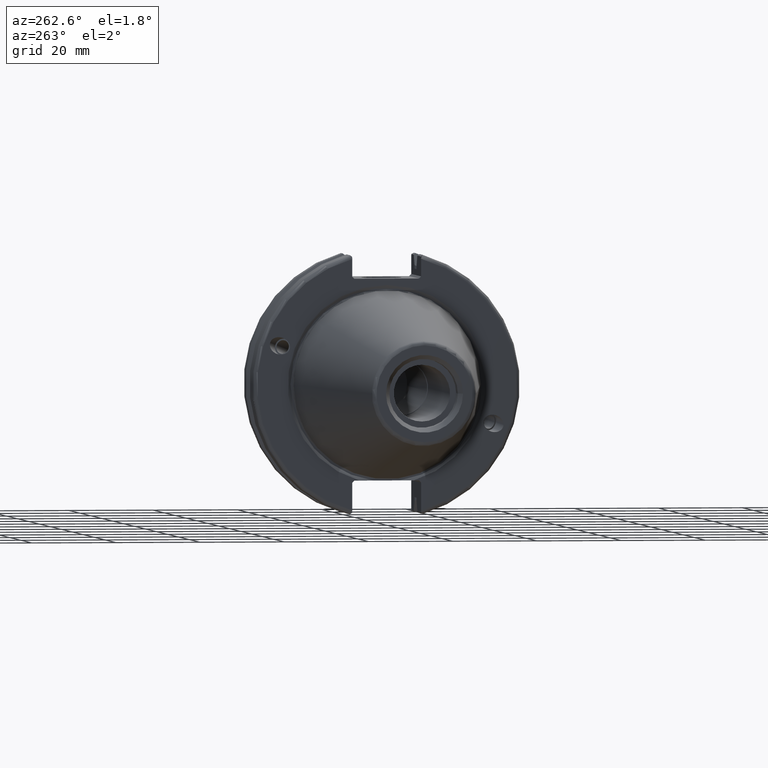
[diagram: clean part render]
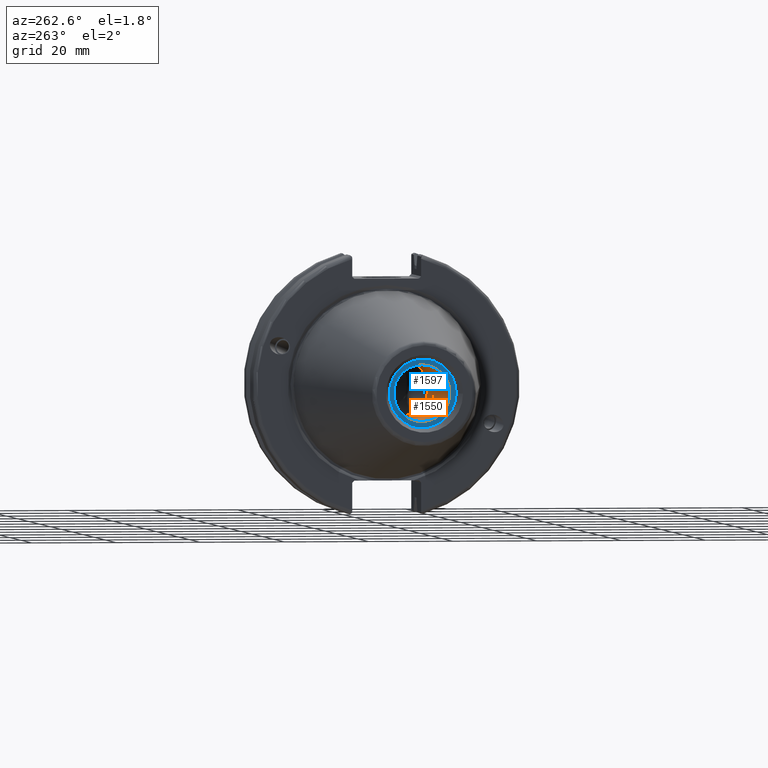
[diagram: same view with the hole feature highlighted: cylindrical wall and planar end face, labeled with their STEP entity ids]
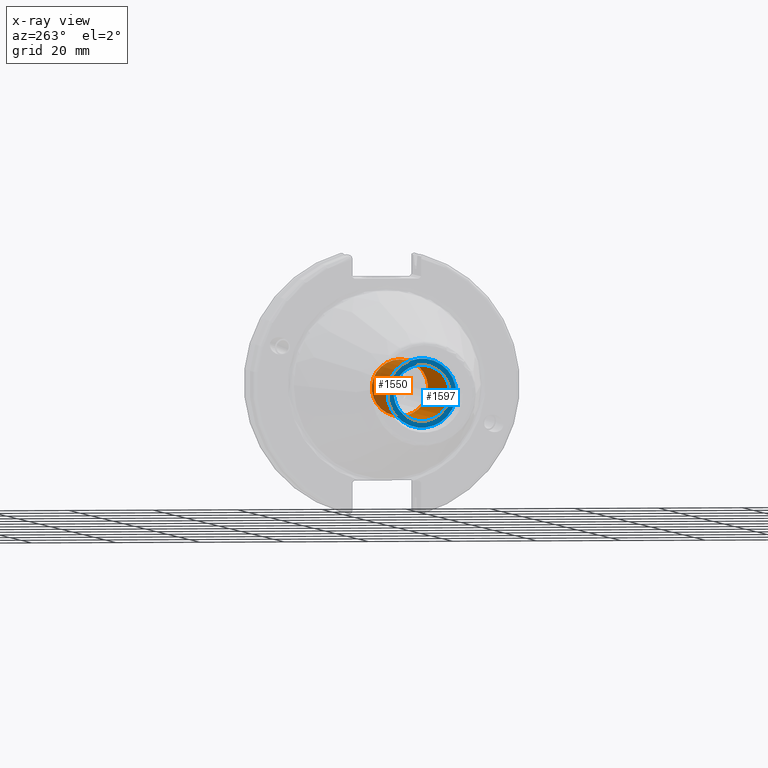
[diagram: x-ray of the same camera — body ghosted, the hole faces saturated]
A machine part, auxiliary view. The highlighted faces form one hole feature of diameter 13.3858 mm: the cylindrical wall (entity #1550, orange) and its adjacent planar end face (entity #1597, blue) — they share a circular edge in the B-rep.
The next image is the same camera in x-ray (body ghosted, the hole faces saturated) — the bore reads through the body.
Wall:
#142=LINE('',#2726,#238);
#238=VECTOR('',#2058,6.6929);
#306=CYLINDRICAL_SURFACE('',#1723,6.6929);
#405=FACE_OUTER_BOUND('',#501,.T.);
#501=EDGE_LOOP('',(#1242,#1243,#1244,#1245));
#599=CIRCLE('',#1722,6.6929);
#600=CIRCLE('',#1724,6.6929);
#726=VERTEX_POINT('',#2720);
#727=VERTEX_POINT('',#2724);
#916=EDGE_CURVE('',#726,#726,#599,.T.);
#918=EDGE_CURVE('',#727,#727,#600,.T.);
#919=EDGE_CURVE('',#727,#726,#142,.T.);
#1242=ORIENTED_EDGE('',*,*,#918,.F.);
#1243=ORIENTED_EDGE('',*,*,#919,.T.);
#1244=ORIENTED_EDGE('',*,*,#916,.F.);
#1245=ORIENTED_EDGE('',*,*,#919,.F.);
#1550=ADVANCED_FACE('',(#405),#306,.F.);
#1722=AXIS2_PLACEMENT_3D('',#2721,#2051,#2052);
#1723=AXIS2_PLACEMENT_3D('',#2723,#2054,#2055);
#1724=AXIS2_PLACEMENT_3D('',#2725,#2056,#2057);
#2051=DIRECTION('center_axis',(-1.,0.,0.));
#2052=DIRECTION('ref_axis',(0.,0.,1.));
#2054=DIRECTION('center_axis',(-1.,0.,0.));
#2055=DIRECTION('ref_axis',(0.,0.,1.));
#2056=DIRECTION('center_axis',(1.,0.,0.));
#2057=DIRECTION('ref_axis',(0.,0.,1.));
#2058=DIRECTION('',(1.,0.,0.));
#2720=CARTESIAN_POINT('',(-23.25,-8.19643856201332E-16,-6.6929));
#2721=CARTESIAN_POINT('Origin',(-23.25,0.,0.));
#2723=CARTESIAN_POINT('Origin',(-45.75,0.,0.));
#2724=CARTESIAN_POINT('',(-63.45,8.19643856201332E-16,-6.6929));
#2725=CARTESIAN_POINT('Origin',(-63.45,0.,0.));
#2726=CARTESIAN_POINT('',(-45.75,-8.19643856201332E-16,-6.6929));
End face:
#329=FACE_BOUND('',#554,.T.);
#365=PLANE('',#1801);
#452=FACE_OUTER_BOUND('',#553,.T.);
#553=EDGE_LOOP('',(#1496));
#554=EDGE_LOOP('',(#1497));
#600=CIRCLE('',#1724,6.6929);
#631=CIRCLE('',#1802,8.14999999999999);
#727=VERTEX_POINT('',#2724);
#787=VERTEX_POINT('',#3053);
#918=EDGE_CURVE('',#727,#727,#600,.T.);
#1024=EDGE_CURVE('',#787,#787,#631,.T.);
#1496=ORIENTED_EDGE('',*,*,#1024,.F.);
#1497=ORIENTED_EDGE('',*,*,#918,.T.);
#1597=ADVANCED_FACE('',(#452,#329),#365,.T.);
#1724=AXIS2_PLACEMENT_3D('',#2725,#2056,#2057);
#1801=AXIS2_PLACEMENT_3D('',#3052,#2259,#2260);
#1802=AXIS2_PLACEMENT_3D('',#3054,#2261,#2262);
#2056=DIRECTION('center_axis',(1.,0.,0.));
#2057=DIRECTION('ref_axis',(0.,0.,1.));
#2259=DIRECTION('center_axis',(-1.,0.,0.));
#2260=DIRECTION('ref_axis',(0.,0.,1.));
#2261=DIRECTION('center_axis',(1.,0.,0.));
#2262=DIRECTION('ref_axis',(0.,0.,-1.));
#2724=CARTESIAN_POINT('',(-63.45,8.19643856201332E-16,-6.6929));
#2725=CARTESIAN_POINT('Origin',(-63.45,0.,0.));
#3052=CARTESIAN_POINT('Origin',(-63.45,8.14999999999999,0.));
#3053=CARTESIAN_POINT('',(-63.45,-8.14999999999999,-9.98087141305092E-16));
#3054=CARTESIAN_POINT('Origin',(-63.45,0.,0.));